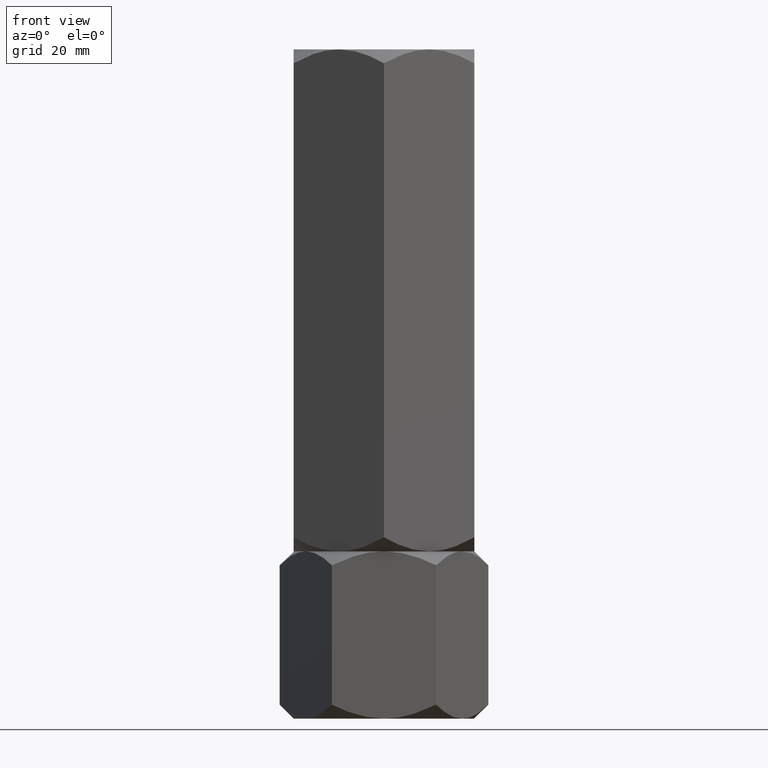
[diagram: clean part render]
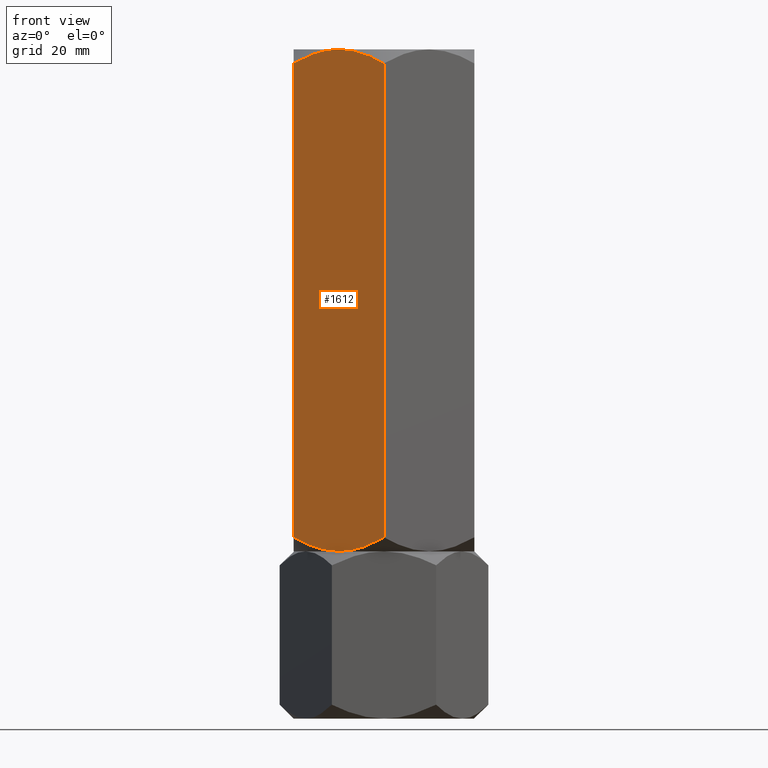
[diagram: same view with one face highlighted and labeled with its STEP entity id]
A machine part, front view. The second image highlights one B-rep face of the part: STEP entity #1612.
In plain terms, the highlighted planar face has unit normal (0.5, 0.866, -0).
Its self-contained STEP definition (entity closure, byte-faithful):
#16 = CARTESIAN_POINT ( 'NONE',  ( -6.297340013485389316E-15, -20.78460969082653165, 130.5487236425067863 ) ) ;
#17 = CARTESIAN_POINT ( 'NONE',  ( -18.00000000000000711, -10.39230484541325694, 130.5487236425067863 ) ) ;
#19 = ORIENTED_EDGE ( 'NONE', *, *, #292, .F. ) ;
#27 = VERTEX_POINT ( 'NONE', #986 ) ;
#44 = ORIENTED_EDGE ( 'NONE', *, *, #650, .F. ) ;
#92 = CARTESIAN_POINT ( 'NONE',  ( -5.097327296964722976, -17.84166640377631552, 33.87041888916230192 ) ) ;
#168 = CARTESIAN_POINT ( 'NONE',  ( -6.297340013485389316E-15, -20.78460969082653165, 130.5487236425067863 ) ) ;
#222 = CARTESIAN_POINT ( 'NONE',  ( -9.000000000000005329, -15.58845726811989429, 33.33333333333330017 ) ) ;
#258 = CARTESIAN_POINT ( 'NONE',  ( -1.411330396252050923, -19.96977770663490759, 35.30311103996819355 ) ) ;
#281 = VERTEX_POINT ( 'NONE', #168 ) ;
#292 = EDGE_CURVE ( 'NONE', #1162, #1015, #2037, .T. ) ;
#307 = CARTESIAN_POINT ( 'NONE',  ( -1.409696000463992682, -19.97072132548310108, 131.3626120078502595 ) ) ;
#338 = EDGE_CURVE ( 'NONE', #27, #1843, #1094, .T. ) ;
#365 = CARTESIAN_POINT ( 'NONE',  ( -18.00000000000000355, -10.39230484541325872, 36.11794302415981406 ) ) ;
#473 = CARTESIAN_POINT ( 'NONE',  ( -18.00000000000000355, -10.39230484541325872, 133.3333333333333144 ) ) ;
#513 = CARTESIAN_POINT ( 'NONE',  ( -2.998680872865238938E-15, -20.78460969082652809, 133.3333333333333144 ) ) ;
#515 = CARTESIAN_POINT ( 'NONE',  ( -9.000000000000005329, -15.58845726811989429, 33.33333333333330017 ) ) ;
#519 = EDGE_CURVE ( 'NONE', #1209, #1162, #1346, .T. ) ;
#574 = LINE ( 'NONE', #1883, #1070 ) ;
#580 = CARTESIAN_POINT ( 'NONE',  ( -9.000000000000003553, -15.58845726811989074, 133.3333333333333144 ) ) ;
#599 = AXIS2_PLACEMENT_3D ( 'NONE', #473, #1927, #953 ) ;
#614 = ORIENTED_EDGE ( 'NONE', *, *, #519, .F. ) ;
#650 = EDGE_CURVE ( 'NONE', #281, #1209, #1119, .T. ) ;
#652 = CARTESIAN_POINT ( 'NONE',  ( -16.58866960374795951, -11.20713682960487567, 131.3635556266983428 ) ) ;
#654 = FACE_OUTER_BOUND ( 'NONE', #1227, .T. ) ;
#667 = CARTESIAN_POINT ( 'NONE',  ( -10.58425150785354596, -14.67378923359657961, 133.2463864432151297 ) ) ;
#779 = CARTESIAN_POINT ( 'NONE',  ( -5.858009779716805809, -17.40248616759157585, 33.67389643558856704 ) ) ;
#804 = CARTESIAN_POINT ( 'NONE',  ( -12.10430252359948256, -13.79618737047369947, 33.60972924045488242 ) ) ;
#830 = CARTESIAN_POINT ( 'NONE',  ( -15.13928418966203893, -12.04393988858690001, 34.60590803483753319 ) ) ;
#885 = CARTESIAN_POINT ( 'NONE',  ( -2.854601888853814717, -19.13650452186756468, 34.61071641122316578 ) ) ;
#898 = VECTOR ( 'NONE', #949, 1000.000000000000000 ) ;
#906 = CARTESIAN_POINT ( 'NONE',  ( -8.209538469370132319, -16.04483044561309057, 33.35066618980736308 ) ) ;
#912 = CARTESIAN_POINT ( 'NONE',  ( -3.379014044959083873E-15, -20.78460969082652809, 36.11794302415981406 ) ) ;
#921 = EDGE_CURVE ( 'NONE', #27, #1015, #574, .T. ) ;
#949 = DIRECTION ( 'NONE',  ( -0.000000000000000000, -0.000000000000000000, -1.000000000000000000 ) ) ;
#953 = DIRECTION ( 'NONE',  ( -0.8660254037844384856, 0.5000000000000002220, 0.000000000000000000 ) ) ;
#961 = CARTESIAN_POINT ( 'NONE',  ( -10.56546083169954642, -14.68463803553234293, 33.33333333333329307 ) ) ;
#983 = CARTESIAN_POINT ( 'NONE',  ( -2.860715810337969955, -19.13297464765287614, 132.0607586318289748 ) ) ;
#986 = CARTESIAN_POINT ( 'NONE',  ( -18.00000000000000711, -10.39230484541325694, 130.5487236425067863 ) ) ;
#993 = CARTESIAN_POINT ( 'NONE',  ( -18.00000000000000355, -10.39230484541325872, 36.11794302415981406 ) ) ;
#1003 = CARTESIAN_POINT ( 'NONE',  ( -15.14539811114619283, -12.04041001437221858, 132.0559502554434061 ) ) ;
#1015 = VERTEX_POINT ( 'NONE', #365 ) ;
#1046 = CARTESIAN_POINT ( 'NONE',  ( -3.379014044959083873E-15, -20.78460969082652809, 36.11794302415981406 ) ) ;
#1063 = B_SPLINE_CURVE_WITH_KNOTS ( 'NONE', 3,
 ( #1903, #1916, #1093, #983, #307, #16 ),
 .UNSPECIFIED., .F., .F.,
 ( 4, 2, 4 ),
 ( 0.01077282027732747414, 0.01612137750481874160, 0.02146993473231000732 ),
 .UNSPECIFIED. ) ;
#1070 = VECTOR ( 'NONE', #1252, 1000.000000000000000 ) ;
#1093 = CARTESIAN_POINT ( 'NONE',  ( -5.895697476400527215, -17.38072716576608556, 133.0569374262117606 ) ) ;
#1094 = B_SPLINE_CURVE_WITH_KNOTS ( 'NONE', 3,
 ( #17, #652, #1003, #1629, #1617, #1456, #667, #1150, #1309, #1747 ),
 .UNSPECIFIED., .F., .F.,
 ( 4, 2, 2, 2, 4 ),
 ( 2.544307986816325776E-07, 0.005386537354063064727, 0.008079678815695268135, 0.009426249546511372007, 0.01077282027732747414 ),
 .UNSPECIFIED. ) ;
#1119 = LINE ( 'NONE', #513, #898 ) ;
#1133 = PLANE ( 'NONE',  #599 ) ;
#1150 = CARTESIAN_POINT ( 'NONE',  ( -9.790461530629876563, -15.13208409062668736, 133.3160004768592160 ) ) ;
#1162 = VERTEX_POINT ( 'NONE', #222 ) ;
#1209 = VERTEX_POINT ( 'NONE', #912 ) ;
#1227 = EDGE_LOOP ( 'NONE', ( #1687, #1805, #19, #614, #44, #1909 ) ) ;
#1252 = DIRECTION ( 'NONE',  ( -0.000000000000000000, -0.000000000000000000, -1.000000000000000000 ) ) ;
#1309 = CARTESIAN_POINT ( 'NONE',  ( -9.394125676616237541, -15.36090870263096519, 133.3333333333333428 ) ) ;
#1346 = B_SPLINE_CURVE_WITH_KNOTS ( 'NONE', 3,
 ( #1046, #258, #885, #92, #779, #1406, #1523, #906, #2028, #1888 ),
 .UNSPECIFIED., .F., .F.,
 ( 4, 2, 2, 2, 4 ),
 ( 2.544307986818388831E-07, 0.005386537354063075135, 0.008079678815695271604, 0.009426249546511370273, 0.01077282027732747241 ),
 .UNSPECIFIED. ) ;
#1406 = CARTESIAN_POINT ( 'NONE',  ( -7.023280245922047804, -16.72971695024923733, 33.47205593243187138 ) ) ;
#1456 = CARTESIAN_POINT ( 'NONE',  ( -10.97671975407796019, -14.44719758599053172, 133.1946107342347148 ) ) ;
#1523 = CARTESIAN_POINT ( 'NONE',  ( -7.415748492146458481, -16.50312530264320188, 33.42028022345144933 ) ) ;
#1612 = ADVANCED_FACE ( 'NONE', ( #654 ), #1133, .F. ) ;
#1617 = CARTESIAN_POINT ( 'NONE',  ( -12.14199022028321373, -13.77442836864821452, 132.9927702310780546 ) ) ;
#1629 = CARTESIAN_POINT ( 'NONE',  ( -12.90267270303528058, -13.33524813246346774, 132.7962477775043055 ) ) ;
#1687 = ORIENTED_EDGE ( 'NONE', *, *, #338, .F. ) ;
#1747 = CARTESIAN_POINT ( 'NONE',  ( -9.000000000000003553, -15.58845726811989074, 133.3333333333333144 ) ) ;
#1779 = CARTESIAN_POINT ( 'NONE',  ( -16.59030399953601886, -11.20619321075667862, 35.30405465881634797 ) ) ;
#1805 = ORIENTED_EDGE ( 'NONE', *, *, #921, .T. ) ;
#1843 = VERTEX_POINT ( 'NONE', #580 ) ;
#1883 = CARTESIAN_POINT ( 'NONE',  ( -18.00000000000000355, -10.39230484541325872, 133.3333333333333144 ) ) ;
#1888 = CARTESIAN_POINT ( 'NONE',  ( -9.000000000000005329, -15.58845726811989429, 33.33333333333330017 ) ) ;
#1903 = CARTESIAN_POINT ( 'NONE',  ( -9.000000000000003553, -15.58845726811989074, 133.3333333333333144 ) ) ;
#1909 = ORIENTED_EDGE ( 'NONE', *, *, #1988, .F. ) ;
#1916 = CARTESIAN_POINT ( 'NONE',  ( -7.434539168300463352, -16.49227650070743678, 133.3333333333332860 ) ) ;
#1927 = DIRECTION ( 'NONE',  ( 0.5000000000000003331, 0.8660254037844385966, -0.000000000000000000 ) ) ;
#1988 = EDGE_CURVE ( 'NONE', #1843, #281, #1063, .T. ) ;
#2028 = CARTESIAN_POINT ( 'NONE',  ( -8.605874323383776670, -15.81600583360881807, 33.33333333333330728 ) ) ;
#2037 = B_SPLINE_CURVE_WITH_KNOTS ( 'NONE', 3,
 ( #515, #961, #804, #830, #1779, #993 ),
 .UNSPECIFIED., .F., .F.,
 ( 4, 2, 4 ),
 ( 0.01077282027732747241, 0.01612137750481873466, 0.02146993473231000038 ),
 .UNSPECIFIED. ) ;